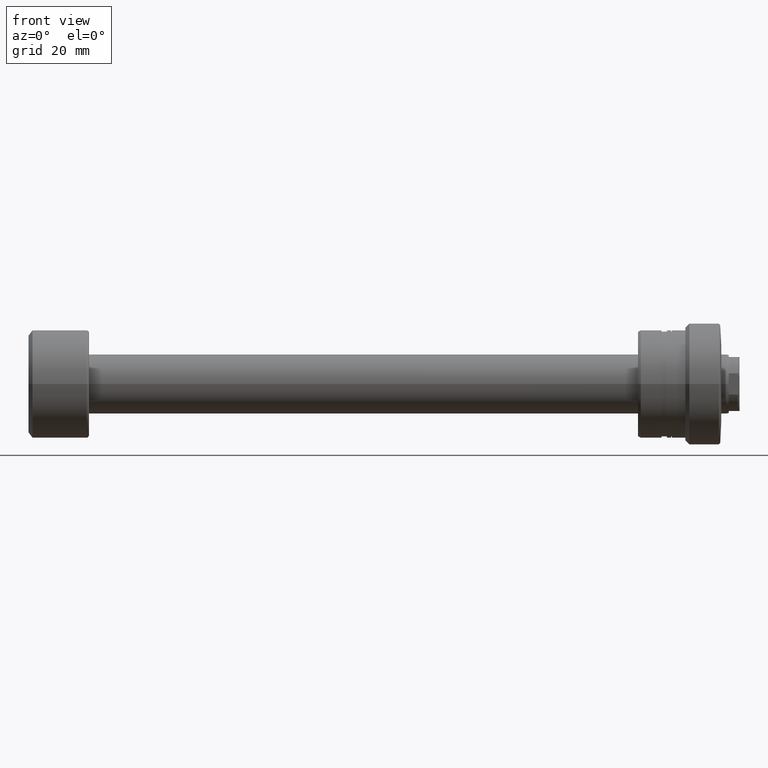
[diagram: clean part render]
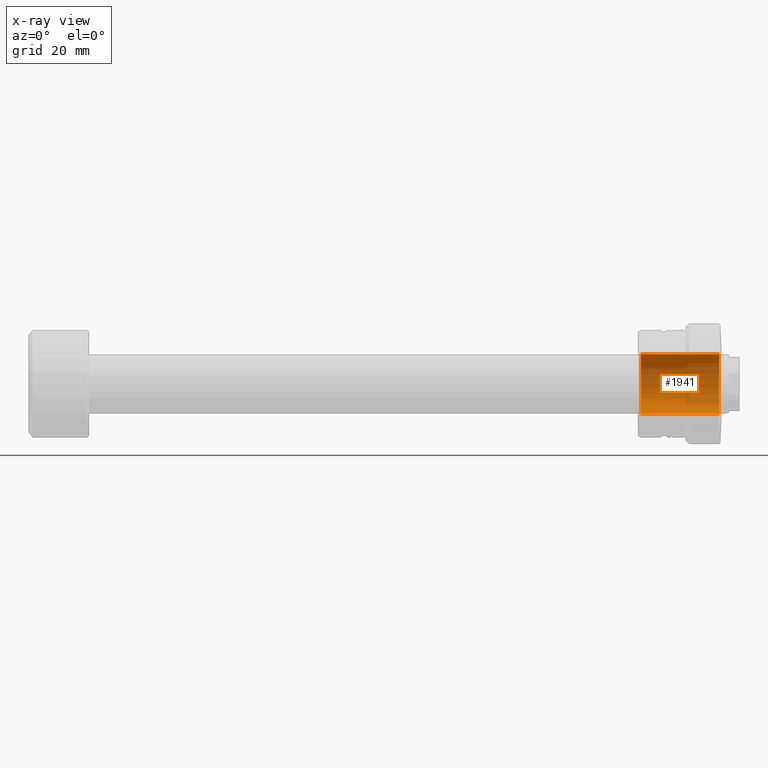
[diagram: x-ray — body ghosted, one internal face saturated and labeled with its STEP entity id]
A machine part, front view, then the same camera in x-ray: the body is ghosted and one INTERNAL B-rep face — a face not visible from any outside direction — is saturated and labeled: STEP entity #1941.
In plain terms, the highlighted cylindrical surface (edge-blend (fillet) strip) has radius 11 mm, axis along (1, 0, 0).
Its self-contained STEP definition (entity closure, byte-faithful):
#40 = VERTEX_POINT ( 'NONE', #339 ) ;
#147 = ORIENTED_EDGE ( 'NONE', *, *, #1843, .T. ) ;
#238 = DIRECTION ( 'NONE',  ( 1.000000000000000000, -0.000000000000000000, -0.000000000000000000 ) ) ;
#297 = ORIENTED_EDGE ( 'NONE', *, *, #512, .T. ) ;
#339 = CARTESIAN_POINT ( 'NONE',  ( -1.500000000000000000, 1.347111479062088405E-15, 11.00000000000000000 ) ) ;
#375 = EDGE_CURVE ( 'NONE', #1128, #40, #1179, .T. ) ;
#461 = CARTESIAN_POINT ( 'NONE',  ( -1.500000000000000000, 0.000000000000000000, -11.00000000000000000 ) ) ;
#491 = DIRECTION ( 'NONE',  ( 1.000000000000000000, 0.000000000000000000, 0.000000000000000000 ) ) ;
#512 = EDGE_CURVE ( 'NONE', #2355, #40, #1028, .T. ) ;
#552 = VECTOR ( 'NONE', #238, 1000.000000000000000 ) ;
#665 = DIRECTION ( 'NONE',  ( 0.000000000000000000, 0.000000000000000000, -1.000000000000000000 ) ) ;
#698 = DIRECTION ( 'NONE',  ( 0.000000000000000000, 0.000000000000000000, -1.000000000000000000 ) ) ;
#735 = VERTEX_POINT ( 'NONE', #1748 ) ;
#853 = CARTESIAN_POINT ( 'NONE',  ( -62.61269837220812207, 0.000000000000000000, 0.000000000000000000 ) ) ;
#877 = CYLINDRICAL_SURFACE ( 'NONE', #882, 11.00000000000000000 ) ;
#882 = AXIS2_PLACEMENT_3D ( 'NONE', #853, #1636, #665 ) ;
#943 = LINE ( 'NONE', #1694, #1568 ) ;
#973 = CARTESIAN_POINT ( 'NONE',  ( -30.50000000000002132, 1.347111479062088405E-15, 11.00000000000000000 ) ) ;
#1028 = CIRCLE ( 'NONE', #2337, 11.00000000000000000 ) ;
#1128 = VERTEX_POINT ( 'NONE', #973 ) ;
#1140 = DIRECTION ( 'NONE',  ( -1.000000000000000000, 0.000000000000000000, 0.000000000000000000 ) ) ;
#1142 = ORIENTED_EDGE ( 'NONE', *, *, #1316, .T. ) ;
#1155 = DIRECTION ( 'NONE',  ( 0.000000000000000000, 0.000000000000000000, -1.000000000000000000 ) ) ;
#1179 = LINE ( 'NONE', #1570, #552 ) ;
#1201 = AXIS2_PLACEMENT_3D ( 'NONE', #1554, #1140, #1155 ) ;
#1270 = FACE_OUTER_BOUND ( 'NONE', #1404, .T. ) ;
#1316 = EDGE_CURVE ( 'NONE', #735, #2355, #943, .T. ) ;
#1349 = ORIENTED_EDGE ( 'NONE', *, *, #375, .F. ) ;
#1404 = EDGE_LOOP ( 'NONE', ( #1349, #147, #1142, #297 ) ) ;
#1554 = CARTESIAN_POINT ( 'NONE',  ( -30.50000000000002132, 0.000000000000000000, 0.000000000000000000 ) ) ;
#1568 = VECTOR ( 'NONE', #2252, 1000.000000000000000 ) ;
#1570 = CARTESIAN_POINT ( 'NONE',  ( -62.61269837220812207, 1.347111479062088405E-15, 11.00000000000000000 ) ) ;
#1636 = DIRECTION ( 'NONE',  ( 1.000000000000000000, -0.000000000000000000, -0.000000000000000000 ) ) ;
#1694 = CARTESIAN_POINT ( 'NONE',  ( -62.61269837220812207, 0.000000000000000000, -11.00000000000000000 ) ) ;
#1748 = CARTESIAN_POINT ( 'NONE',  ( -30.50000000000002132, 0.000000000000000000, -11.00000000000000000 ) ) ;
#1843 = EDGE_CURVE ( 'NONE', #1128, #735, #2267, .T. ) ;
#1941 = ADVANCED_FACE ( 'NONE', ( #1270 ), #877, .F. ) ;
#2218 = CARTESIAN_POINT ( 'NONE',  ( -1.500000000000000000, 0.000000000000000000, 0.000000000000000000 ) ) ;
#2252 = DIRECTION ( 'NONE',  ( 1.000000000000000000, -0.000000000000000000, -0.000000000000000000 ) ) ;
#2267 = CIRCLE ( 'NONE', #1201, 11.00000000000000000 ) ;
#2337 = AXIS2_PLACEMENT_3D ( 'NONE', #2218, #491, #698 ) ;
#2355 = VERTEX_POINT ( 'NONE', #461 ) ;